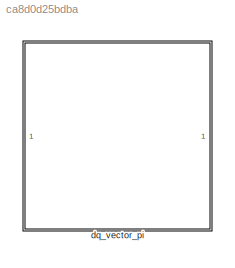
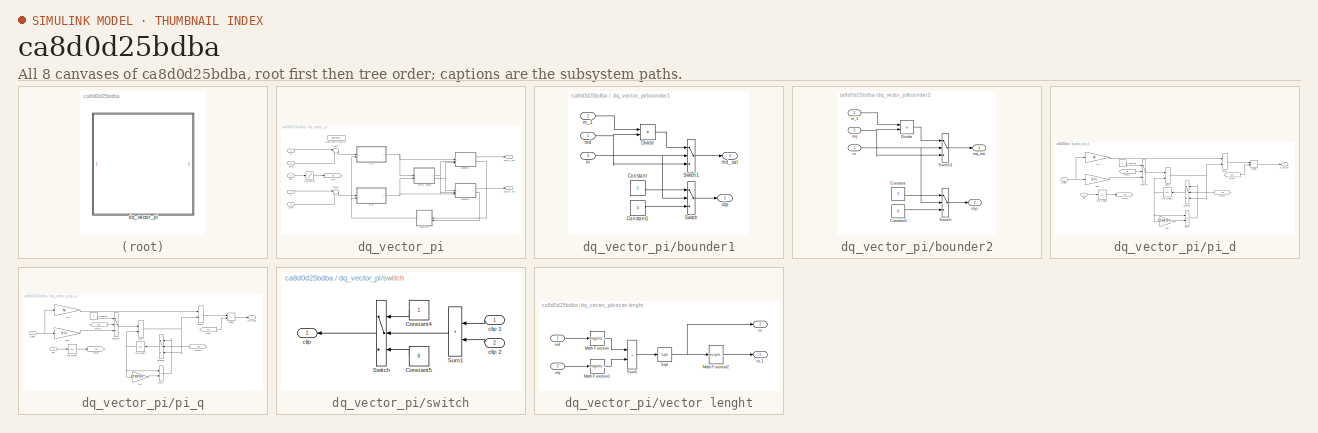
[diagram: thumbnail index - all 8 canvases of the model, root first then tree order]
MODEL slx_ca8d0d25bdba
KIND library
CONFIG AbsTol = auto
CONFIG EnableMultiTasking = off
CONFIG FixedStep = auto
CONFIG MaxStep = auto
CONFIG MinStep = auto
CONFIG RelTol = 1e-3
CONFIG SampleTimeConstraint = Unconstrained
CONFIG SolverName = VariableStepAuto
CONFIG StartTime = 0.0
CONFIG StopTime = 10.0
BLOCK [SubSystem] dq_vector_pi
BLOCK [Goto] dq_vector_pi/Goto
  GotoTag = udc
  TagVisibility = scoped
BLOCK [GotoTagVisibility] dq_vector_pi/Goto Tag Visibility
  GotoTag = udc
BLOCK [Saturate] dq_vector_pi/Saturation
  LowerLimit = 0.25
  UpperLimit = inf
BLOCK [Sum] dq_vector_pi/Sum1
  Inputs = |-+
BLOCK [Sum] dq_vector_pi/Sum2
  Inputs = |-+
BLOCK [SubSystem] dq_vector_pi/bounder1
BLOCK [Constant] dq_vector_pi/bounder1/Constant
BLOCK [Constant] dq_vector_pi/bounder1/Constant1
  Value = 0
BLOCK [Product] dq_vector_pi/bounder1/Divide
BLOCK [Switch] dq_vector_pi/bounder1/Switch
  InputSameDT = off
  SaturateOnIntegerOverflow = off
  Threshold = lim_ctrl_out
BLOCK [Switch] dq_vector_pi/bounder1/Switch1
  InputSameDT = off
  SaturateOnIntegerOverflow = off
  Threshold = lim_ctrl_out
BLOCK [Outport] dq_vector_pi/bounder1/clip
  Port = 2
  VectorParamsAs1DForOutWhenUnconnected = off
BLOCK [Inport] dq_vector_pi/bounder1/m
  Port = 3
BLOCK [Inport] dq_vector_pi/bounder1/m_1
  Port = 2
BLOCK [Inport] dq_vector_pi/bounder1/md
BLOCK [Outport] dq_vector_pi/bounder1/md_sat
  VectorParamsAs1DForOutWhenUnconnected = off
BLOCK [SubSystem] dq_vector_pi/bounder2
BLOCK [Constant] dq_vector_pi/bounder2/Constant
BLOCK [Constant] dq_vector_pi/bounder2/Constant1
  Value = 0
BLOCK [Product] dq_vector_pi/bounder2/Divide
BLOCK [Switch] dq_vector_pi/bounder2/Switch
  InputSameDT = off
  SaturateOnIntegerOverflow = off
  Threshold = lim_ctrl_out
BLOCK [Switch] dq_vector_pi/bounder2/Switch1
  InputSameDT = off
  SaturateOnIntegerOverflow = off
  Threshold = lim_ctrl_out
BLOCK [Outport] dq_vector_pi/bounder2/clip
  Port = 2
  VectorParamsAs1DForOutWhenUnconnected = off
BLOCK [Inport] dq_vector_pi/bounder2/m
BLOCK [Inport] dq_vector_pi/bounder2/m_1
  Port = 2
BLOCK [Inport] dq_vector_pi/bounder2/mq
  Port = 3
BLOCK [Outport] dq_vector_pi/bounder2/mq_sat
  VectorParamsAs1DForOutWhenUnconnected = off
BLOCK [Inport] dq_vector_pi/d
  Port = 2
BLOCK [Inport] dq_vector_pi/d_ref
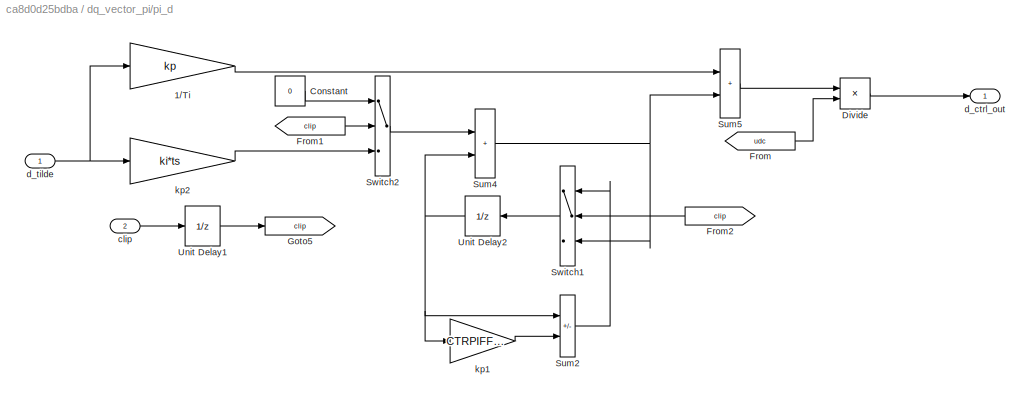
BLOCK [SubSystem] dq_vector_pi/pi_d
BLOCK [Gain] dq_vector_pi/pi_d/1//Ti
  Gain = kp
  OutDataTypeStr = Inherit: Same as input
  ParamDataTypeStr = Inherit: Same as input
  SaturateOnIntegerOverflow = on
BLOCK [Constant] dq_vector_pi/pi_d/Constant
  Value = 0
BLOCK [Product] dq_vector_pi/pi_d/Divide
  Inputs = */
BLOCK [From] dq_vector_pi/pi_d/From
  GotoTag = udc
  TagVisibility = scoped
BLOCK [From] dq_vector_pi/pi_d/From1
  GotoTag = clip
BLOCK [From] dq_vector_pi/pi_d/From2
  GotoTag = clip
  NameLocation = top
BLOCK [Goto] dq_vector_pi/pi_d/Goto5
  GotoTag = clip
BLOCK [Sum] dq_vector_pi/pi_d/Sum2
  IconShape = rectangular
  Inputs = +-
  SaturateOnIntegerOverflow = on
BLOCK [Sum] dq_vector_pi/pi_d/Sum4
  IconShape = rectangular
  SaturateOnIntegerOverflow = on
BLOCK [Sum] dq_vector_pi/pi_d/Sum5
  IconShape = rectangular
  SaturateOnIntegerOverflow = on
BLOCK [Switch] dq_vector_pi/pi_d/Switch1
  InputSameDT = off
  NameLocation = top
  SaturateOnIntegerOverflow = off
  Threshold = 0.5
BLOCK [Switch] dq_vector_pi/pi_d/Switch2
  InputSameDT = off
  SaturateOnIntegerOverflow = off
  Threshold = 0.5
BLOCK [UnitDelay] dq_vector_pi/pi_d/Unit Delay1
  HasFrameUpgradeWarning = on
  NameLocation = top
  SampleTime = -1
BLOCK [UnitDelay] dq_vector_pi/pi_d/Unit Delay2
  HasFrameUpgradeWarning = on
  SampleTime = -1
BLOCK [Inport] dq_vector_pi/pi_d/clip
  Port = 2
BLOCK [Outport] dq_vector_pi/pi_d/d_ctrl_out
  VectorParamsAs1DForOutWhenUnconnected = off
BLOCK [Inport] dq_vector_pi/pi_d/d_tilde
BLOCK [Gain] dq_vector_pi/pi_d/kp1
  Gain = CTRPIFF_CLIP_RELEASE*ts
  OutDataTypeStr = Inherit: Same as input
  ParamDataTypeStr = Inherit: Same as input
  SaturateOnIntegerOverflow = on
BLOCK [Gain] dq_vector_pi/pi_d/kp2
  Gain = ki*ts
  OutDataTypeStr = Inherit: Same as input
  ParamDataTypeStr = Inherit: Same as input
  SaturateOnIntegerOverflow = on
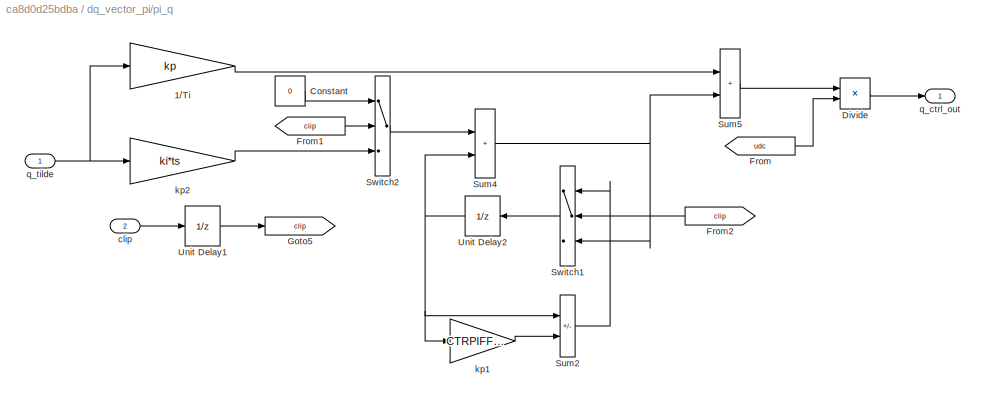
BLOCK [SubSystem] dq_vector_pi/pi_q
BLOCK [Gain] dq_vector_pi/pi_q/1//Ti
  Gain = kp
  OutDataTypeStr = Inherit: Same as input
  ParamDataTypeStr = Inherit: Same as input
  SaturateOnIntegerOverflow = on
BLOCK [Constant] dq_vector_pi/pi_q/Constant
  Value = 0
BLOCK [Product] dq_vector_pi/pi_q/Divide
  Inputs = */
BLOCK [From] dq_vector_pi/pi_q/From
  GotoTag = udc
  TagVisibility = scoped
BLOCK [From] dq_vector_pi/pi_q/From1
  GotoTag = clip
BLOCK [From] dq_vector_pi/pi_q/From2
  GotoTag = clip
  NameLocation = top
BLOCK [Goto] dq_vector_pi/pi_q/Goto5
  GotoTag = clip
BLOCK [Sum] dq_vector_pi/pi_q/Sum2
  IconShape = rectangular
  Inputs = +-
  SaturateOnIntegerOverflow = on
BLOCK [Sum] dq_vector_pi/pi_q/Sum4
  IconShape = rectangular
  SaturateOnIntegerOverflow = on
BLOCK [Sum] dq_vector_pi/pi_q/Sum5
  IconShape = rectangular
  SaturateOnIntegerOverflow = on
BLOCK [Switch] dq_vector_pi/pi_q/Switch1
  InputSameDT = off
  NameLocation = top
  SaturateOnIntegerOverflow = off
  Threshold = 0.5
BLOCK [Switch] dq_vector_pi/pi_q/Switch2
  InputSameDT = off
  SaturateOnIntegerOverflow = off
  Threshold = 0.5
BLOCK [UnitDelay] dq_vector_pi/pi_q/Unit Delay1
  HasFrameUpgradeWarning = on
  NameLocation = top
  SampleTime = -1
BLOCK [UnitDelay] dq_vector_pi/pi_q/Unit Delay2
  HasFrameUpgradeWarning = on
  SampleTime = -1
BLOCK [Inport] dq_vector_pi/pi_q/clip
  Port = 2
BLOCK [Gain] dq_vector_pi/pi_q/kp1
  Gain = CTRPIFF_CLIP_RELEASE*ts
  OutDataTypeStr = Inherit: Same as input
  ParamDataTypeStr = Inherit: Same as input
  SaturateOnIntegerOverflow = on
BLOCK [Gain] dq_vector_pi/pi_q/kp2
  Gain = ki*ts
  OutDataTypeStr = Inherit: Same as input
  ParamDataTypeStr = Inherit: Same as input
  SaturateOnIntegerOverflow = on
BLOCK [Outport] dq_vector_pi/pi_q/q_ctrl_out
  VectorParamsAs1DForOutWhenUnconnected = off
BLOCK [Inport] dq_vector_pi/pi_q/q_tilde
BLOCK [Inport] dq_vector_pi/q
  Port = 4
BLOCK [Inport] dq_vector_pi/q_ref
  Port = 3
BLOCK [SubSystem] dq_vector_pi/switch
  NameLocation = top
BLOCK [Constant] dq_vector_pi/switch/Constant4
  NameLocation = top
BLOCK [Constant] dq_vector_pi/switch/Constant5
  NameLocation = top
  Value = 0
BLOCK [Sum] dq_vector_pi/switch/Sum1
  IconShape = rectangular
  NameLocation = top
  SaturateOnIntegerOverflow = on
BLOCK [Switch] dq_vector_pi/switch/Switch
  InputSameDT = off
  NameLocation = top
  SaturateOnIntegerOverflow = off
  Threshold = 0.5
BLOCK [Outport] dq_vector_pi/switch/clip
  VectorParamsAs1DForOutWhenUnconnected = off
BLOCK [Inport] dq_vector_pi/switch/clip 1
BLOCK [Inport] dq_vector_pi/switch/clip 2
  Port = 2
BLOCK [Outport] dq_vector_pi/ud_ctrl_out
BLOCK [Inport] dq_vector_pi/udc
  Port = 5
BLOCK [Outport] dq_vector_pi/uq_ctrl_out
  Port = 2
BLOCK [SubSystem] dq_vector_pi/vector lenght
BLOCK [Math] dq_vector_pi/vector lenght/Math Function
  Operator = magnitude^2
  SignedPower = on
BLOCK [Math] dq_vector_pi/vector lenght/Math Function1
  Operator = magnitude^2
  SignedPower = on
BLOCK [Math] dq_vector_pi/vector lenght/Math Function2
  Operator = reciprocal
  SignedPower = on
BLOCK [Sqrt] dq_vector_pi/vector lenght/Sqrt
BLOCK [Sum] dq_vector_pi/vector lenght/Sum5
  IconShape = rectangular
  SaturateOnIntegerOverflow = on
BLOCK [Outport] dq_vector_pi/vector lenght/m
  Port = 2
  VectorParamsAs1DForOutWhenUnconnected = off
BLOCK [Outport] dq_vector_pi/vector lenght/m_1
  VectorParamsAs1DForOutWhenUnconnected = off
BLOCK [Inport] dq_vector_pi/vector lenght/md
BLOCK [Inport] dq_vector_pi/vector lenght/mq
  Port = 2
LINE dq_vector_pi/Saturation:1 -> dq_vector_pi/Goto:1
LINE dq_vector_pi/Sum1:1 -> dq_vector_pi/pi_d:1
LINE dq_vector_pi/Sum2:1 -> dq_vector_pi/pi_q:1
LINE dq_vector_pi/bounder1/Constant1:1 -> dq_vector_pi/bounder1/Switch:3
LINE dq_vector_pi/bounder1/Constant:1 -> dq_vector_pi/bounder1/Switch:1
LINE dq_vector_pi/bounder1/Divide:1 -> dq_vector_pi/bounder1/Switch1:1
LINE dq_vector_pi/bounder1/Switch1:1 -> dq_vector_pi/bounder1/md_sat:1
LINE dq_vector_pi/bounder1/Switch:1 -> dq_vector_pi/bounder1/clip:1
NET dq_vector_pi/bounder1/m:1 -> dq_vector_pi/bounder1/Switch1:2, dq_vector_pi/bounder1/Switch:2
LINE dq_vector_pi/bounder1/m_1:1 -> dq_vector_pi/bounder1/Divide:1
NET dq_vector_pi/bounder1/md:1 -> dq_vector_pi/bounder1/Divide:2, dq_vector_pi/bounder1/Switch1:3
LINE dq_vector_pi/bounder1:1 -> dq_vector_pi/ud_ctrl_out:1
LINE dq_vector_pi/bounder1:2 -> dq_vector_pi/switch:1
LINE dq_vector_pi/bounder2/Constant1:1 -> dq_vector_pi/bounder2/Switch:3
LINE dq_vector_pi/bounder2/Constant:1 -> dq_vector_pi/bounder2/Switch:1
LINE dq_vector_pi/bounder2/Divide:1 -> dq_vector_pi/bounder2/Switch1:1
LINE dq_vector_pi/bounder2/Switch1:1 -> dq_vector_pi/bounder2/mq_sat:1
LINE dq_vector_pi/bounder2/Switch:1 -> dq_vector_pi/bounder2/clip:1
NET dq_vector_pi/bounder2/m:1 -> dq_vector_pi/bounder2/Switch1:2, dq_vector_pi/bounder2/Switch:2
LINE dq_vector_pi/bounder2/m_1:1 -> dq_vector_pi/bounder2/Divide:1
NET dq_vector_pi/bounder2/mq:1 -> dq_vector_pi/bounder2/Divide:2, dq_vector_pi/bounder2/Switch1:3
LINE dq_vector_pi/bounder2:1 -> dq_vector_pi/uq_ctrl_out:1
LINE dq_vector_pi/bounder2:2 -> dq_vector_pi/switch:2
LINE dq_vector_pi/d:1 -> dq_vector_pi/Sum1:1
LINE dq_vector_pi/d_ref:1 -> dq_vector_pi/Sum1:2
LINE dq_vector_pi/pi_d/1//Ti:1 -> dq_vector_pi/pi_d/Sum5:1
LINE dq_vector_pi/pi_d/Constant:1 -> dq_vector_pi/pi_d/Switch2:1
LINE dq_vector_pi/pi_d/Divide:1 -> dq_vector_pi/pi_d/d_ctrl_out:1
LINE dq_vector_pi/pi_d/From1:1 -> dq_vector_pi/pi_d/Switch2:2
LINE dq_vector_pi/pi_d/From2:1 -> dq_vector_pi/pi_d/Switch1:2
LINE dq_vector_pi/pi_d/From:1 -> dq_vector_pi/pi_d/Divide:2
LINE dq_vector_pi/pi_d/Sum2:1 -> dq_vector_pi/pi_d/Switch1:1
NET dq_vector_pi/pi_d/Sum4:1 -> dq_vector_pi/pi_d/Sum5:2, dq_vector_pi/pi_d/Switch1:3
LINE dq_vector_pi/pi_d/Sum5:1 -> dq_vector_pi/pi_d/Divide:1
LINE dq_vector_pi/pi_d/Switch1:1 -> dq_vector_pi/pi_d/Unit Delay2:1
LINE dq_vector_pi/pi_d/Switch2:1 -> dq_vector_pi/pi_d/Sum4:1
LINE dq_vector_pi/pi_d/Unit Delay1:1 -> dq_vector_pi/pi_d/Goto5:1
NET dq_vector_pi/pi_d/Unit Delay2:1 -> dq_vector_pi/pi_d/Sum2:1, dq_vector_pi/pi_d/Sum4:2, dq_vector_pi/pi_d/kp1:1
LINE dq_vector_pi/pi_d/clip:1 -> dq_vector_pi/pi_d/Unit Delay1:1
NET dq_vector_pi/pi_d/d_tilde:1 -> dq_vector_pi/pi_d/1//Ti:1, dq_vector_pi/pi_d/kp2:1
LINE dq_vector_pi/pi_d/kp1:1 -> dq_vector_pi/pi_d/Sum2:2
LINE dq_vector_pi/pi_d/kp2:1 -> dq_vector_pi/pi_d/Switch2:3
NET dq_vector_pi/pi_d:1 -> dq_vector_pi/bounder1:1, dq_vector_pi/vector lenght:1
LINE dq_vector_pi/pi_q/1//Ti:1 -> dq_vector_pi/pi_q/Sum5:1
LINE dq_vector_pi/pi_q/Constant:1 -> dq_vector_pi/pi_q/Switch2:1
LINE dq_vector_pi/pi_q/Divide:1 -> dq_vector_pi/pi_q/q_ctrl_out:1
LINE dq_vector_pi/pi_q/From1:1 -> dq_vector_pi/pi_q/Switch2:2
LINE dq_vector_pi/pi_q/From2:1 -> dq_vector_pi/pi_q/Switch1:2
LINE dq_vector_pi/pi_q/From:1 -> dq_vector_pi/pi_q/Divide:2
LINE dq_vector_pi/pi_q/Sum2:1 -> dq_vector_pi/pi_q/Switch1:1
NET dq_vector_pi/pi_q/Sum4:1 -> dq_vector_pi/pi_q/Sum5:2, dq_vector_pi/pi_q/Switch1:3
LINE dq_vector_pi/pi_q/Sum5:1 -> dq_vector_pi/pi_q/Divide:1
LINE dq_vector_pi/pi_q/Switch1:1 -> dq_vector_pi/pi_q/Unit Delay2:1
LINE dq_vector_pi/pi_q/Switch2:1 -> dq_vector_pi/pi_q/Sum4:1
LINE dq_vector_pi/pi_q/Unit Delay1:1 -> dq_vector_pi/pi_q/Goto5:1
NET dq_vector_pi/pi_q/Unit Delay2:1 -> dq_vector_pi/pi_q/Sum2:1, dq_vector_pi/pi_q/Sum4:2, dq_vector_pi/pi_q/kp1:1
LINE dq_vector_pi/pi_q/clip:1 -> dq_vector_pi/pi_q/Unit Delay1:1
LINE dq_vector_pi/pi_q/kp1:1 -> dq_vector_pi/pi_q/Sum2:2
LINE dq_vector_pi/pi_q/kp2:1 -> dq_vector_pi/pi_q/Switch2:3
NET dq_vector_pi/pi_q/q_tilde:1 -> dq_vector_pi/pi_q/1//Ti:1, dq_vector_pi/pi_q/kp2:1
NET dq_vector_pi/pi_q:1 -> dq_vector_pi/bounder2:3, dq_vector_pi/vector lenght:2
LINE dq_vector_pi/q:1 -> dq_vector_pi/Sum2:1
LINE dq_vector_pi/q_ref:1 -> dq_vector_pi/Sum2:2
LINE dq_vector_pi/switch/Constant4:1 -> dq_vector_pi/switch/Switch:1
LINE dq_vector_pi/switch/Constant5:1 -> dq_vector_pi/switch/Switch:3
LINE dq_vector_pi/switch/Sum1:1 -> dq_vector_pi/switch/Switch:2
LINE dq_vector_pi/switch/Switch:1 -> dq_vector_pi/switch/clip:1
LINE dq_vector_pi/switch/clip 1:1 -> dq_vector_pi/switch/Sum1:1
LINE dq_vector_pi/switch/clip 2:1 -> dq_vector_pi/switch/Sum1:2
NET dq_vector_pi/switch:1 -> dq_vector_pi/pi_d:2, dq_vector_pi/pi_q:2
LINE dq_vector_pi/udc:1 -> dq_vector_pi/Saturation:1
LINE dq_vector_pi/vector lenght/Math Function1:1 -> dq_vector_pi/vector lenght/Sum5:2
LINE dq_vector_pi/vector lenght/Math Function2:1 -> dq_vector_pi/vector lenght/m_1:1
LINE dq_vector_pi/vector lenght/Math Function:1 -> dq_vector_pi/vector lenght/Sum5:1
NET dq_vector_pi/vector lenght/Sqrt:1 -> dq_vector_pi/vector lenght/Math Function2:1, dq_vector_pi/vector lenght/m:1
LINE dq_vector_pi/vector lenght/Sum5:1 -> dq_vector_pi/vector lenght/Sqrt:1
LINE dq_vector_pi/vector lenght/md:1 -> dq_vector_pi/vector lenght/Math Function:1
LINE dq_vector_pi/vector lenght/mq:1 -> dq_vector_pi/vector lenght/Math Function1:1
NET dq_vector_pi/vector lenght:1 -> dq_vector_pi/bounder1:2, dq_vector_pi/bounder2:2
NET dq_vector_pi/vector lenght:2 -> dq_vector_pi/bounder1:3, dq_vector_pi/bounder2:1
note: NET lines group one-source signal fan-out (src -> all destinations, sorted); 1:1 wires keep LINE
